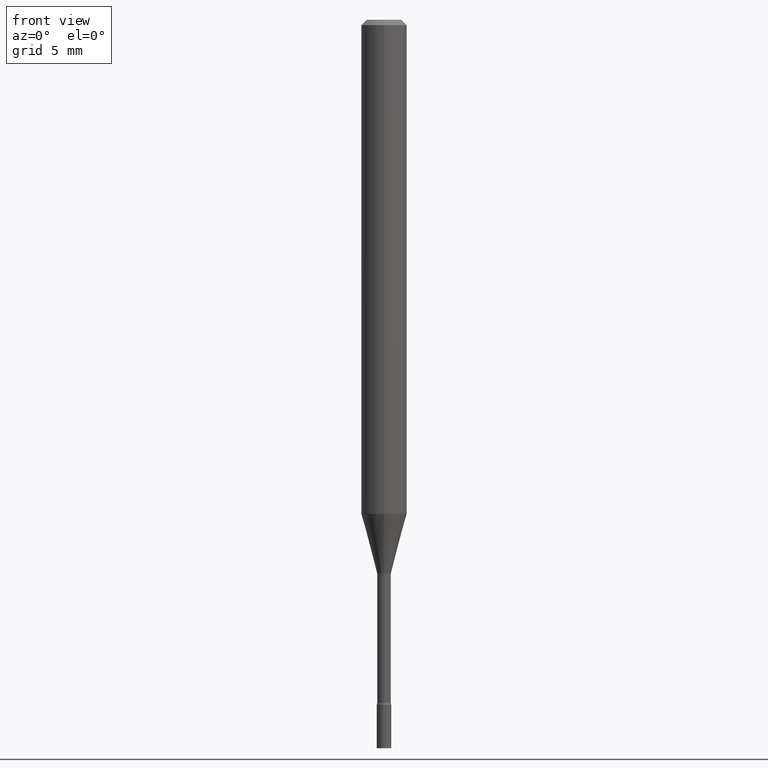
[diagram: clean part render]
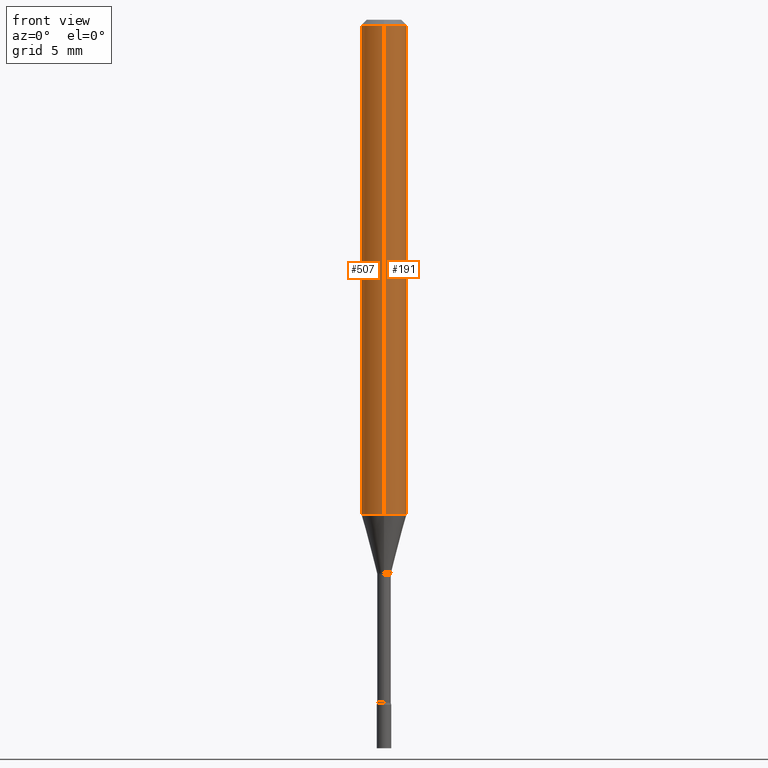
[diagram: same view with one multi-face feature highlighted, each face labeled with its STEP entity id]
A machine part, front view. The highlighted faces form ONE feature: a constant-radius fillet chain: 2 tangent blend faces with common blend radius 1.5875 mm. The faces share edges in the B-rep.
Their STEP definitions:
[1] entity #191 (Cylinder):
#4 = FACE_OUTER_BOUND ( 'NONE', #305, .T. ) ;
#14 = LINE ( 'NONE', #163, #90 ) ;
#48 = VERTEX_POINT ( 'NONE', #102 ) ;
#49 = AXIS2_PLACEMENT_3D ( 'NONE', #481, #324, #239 ) ;
#58 = VERTEX_POINT ( 'NONE', #461 ) ;
#66 = ORIENTED_EDGE ( 'NONE', *, *, #202, .F. ) ;
#75 = AXIS2_PLACEMENT_3D ( 'NONE', #82, #361, #282 ) ;
#77 = LINE ( 'NONE', #289, #162 ) ;
#82 = CARTESIAN_POINT ( 'NONE',  ( 3.318328816500207718E-29, -4.737553240931613222E-15, -1.356909379709240193 ) ) ;
#86 = CYLINDRICAL_SURFACE ( 'NONE', #393, 0.06250000000000000000 ) ;
#90 = VECTOR ( 'NONE', #150, 39.37007874015748143 ) ;
#98 = EDGE_CURVE ( 'NONE', #58, #385, #173, .T. ) ;
#102 = CARTESIAN_POINT ( 'NONE',  ( -4.364351673553912750E-16, -0.06250000000000005551, -0.01499999999999981209 ) ) ;
#123 = DIRECTION ( 'NONE',  ( -2.445505106030928727E-29, 3.491429355397911828E-15, 1.000000000000000000 ) ) ;
#150 = DIRECTION ( 'NONE',  ( -2.445505106030928727E-29, 3.491429355397911828E-15, 1.000000000000000000 ) ) ;
#156 = VERTEX_POINT ( 'NONE', #284 ) ;
#162 = VECTOR ( 'NONE', #123, 39.37007874015748143 ) ;
#163 = CARTESIAN_POINT ( 'NONE',  ( 4.440892098500625669E-16, 0.06250000000000000000, -2.182143347123694893E-16 ) ) ;
#173 = CIRCLE ( 'NONE', #75, 0.06250000000000000000 ) ;
#176 = EDGE_CURVE ( 'NONE', #58, #48, #77, .T. ) ;
#191 = ADVANCED_FACE ( 'NONE', ( #4 ), #86, .T. ) ;
#202 = EDGE_CURVE ( 'NONE', #48, #156, #273, .T. ) ;
#207 = CARTESIAN_POINT ( 'NONE',  ( 0.000000000000000000, 0.000000000000000000, 0.000000000000000000 ) ) ;
#208 = ORIENTED_EDGE ( 'NONE', *, *, #274, .T. ) ;
#239 = DIRECTION ( 'NONE',  ( -6.982962677686265922E-15, -1.000000000000000000, 3.483106191921935554E-15 ) ) ;
#265 = CARTESIAN_POINT ( 'NONE',  ( 4.440892098500955511E-16, 0.06249999999999524686, -1.356909379709240415 ) ) ;
#273 = CIRCLE ( 'NONE', #49, 0.06250000000000000000 ) ;
#274 = EDGE_CURVE ( 'NONE', #385, #156, #14, .T. ) ;
#281 = DIRECTION ( 'NONE',  ( -2.445505106030929007E-29, 3.491429355397911828E-15, 1.000000000000000000 ) ) ;
#282 = DIRECTION ( 'NONE',  ( -6.982962677686265922E-15, -1.000000000000000000, 4.370956789862821150E-15 ) ) ;
#284 = CARTESIAN_POINT ( 'NONE',  ( 4.440892098500960442E-16, 0.06249999999999995837, -0.01500000000000024751 ) ) ;
#289 = CARTESIAN_POINT ( 'NONE',  ( -4.364351673553916201E-16, -0.06250000000000000000, 2.182143347123694893E-16 ) ) ;
#305 = EDGE_LOOP ( 'NONE', ( #344, #208, #66, #472 ) ) ;
#324 = DIRECTION ( 'NONE',  ( -2.445505106030929007E-29, 3.491429355397911828E-15, 1.000000000000000000 ) ) ;
#344 = ORIENTED_EDGE ( 'NONE', *, *, #98, .T. ) ;
#361 = DIRECTION ( 'NONE',  ( -2.445505106030929007E-29, 3.491429355397911828E-15, 1.000000000000000000 ) ) ;
#385 = VERTEX_POINT ( 'NONE', #265 ) ;
#393 = AXIS2_PLACEMENT_3D ( 'NONE', #207, #281, #445 ) ;
#445 = DIRECTION ( 'NONE',  ( -6.982962677686265922E-15, -1.000000000000000000, 3.491429355397911828E-15 ) ) ;
#461 = CARTESIAN_POINT ( 'NONE',  ( -4.364351673553586359E-16, -0.06250000000000476008, -1.356909379709239971 ) ) ;
#472 = ORIENTED_EDGE ( 'NONE', *, *, #176, .F. ) ;
#481 = CARTESIAN_POINT ( 'NONE',  ( 3.668257659046400833E-31, -5.237144033096878737E-17, -0.01500000000000003067 ) ) ;
[2] entity #507 (Cylinder):
#2 = CIRCLE ( 'NONE', #517, 0.06250000000000000000 ) ;
#9 = DIRECTION ( 'NONE',  ( -2.445505106030929007E-29, 3.491429355397911828E-15, 1.000000000000000000 ) ) ;
#14 = LINE ( 'NONE', #163, #90 ) ;
#38 = EDGE_LOOP ( 'NONE', ( #100, #218, #443, #109 ) ) ;
#48 = VERTEX_POINT ( 'NONE', #102 ) ;
#58 = VERTEX_POINT ( 'NONE', #461 ) ;
#77 = LINE ( 'NONE', #289, #162 ) ;
#90 = VECTOR ( 'NONE', #150, 39.37007874015748143 ) ;
#100 = ORIENTED_EDGE ( 'NONE', *, *, #274, .F. ) ;
#102 = CARTESIAN_POINT ( 'NONE',  ( -4.364351673553912750E-16, -0.06250000000000005551, -0.01499999999999981209 ) ) ;
#109 = ORIENTED_EDGE ( 'NONE', *, *, #398, .F. ) ;
#111 = CIRCLE ( 'NONE', #194, 0.06250000000000000000 ) ;
#123 = DIRECTION ( 'NONE',  ( -2.445505106030928727E-29, 3.491429355397911828E-15, 1.000000000000000000 ) ) ;
#134 = DIRECTION ( 'NONE',  ( -6.982962677686265922E-15, -1.000000000000000000, 4.370956789862821150E-15 ) ) ;
#147 = CYLINDRICAL_SURFACE ( 'NONE', #283, 0.06250000000000000000 ) ;
#150 = DIRECTION ( 'NONE',  ( -2.445505106030928727E-29, 3.491429355397911828E-15, 1.000000000000000000 ) ) ;
#156 = VERTEX_POINT ( 'NONE', #284 ) ;
#162 = VECTOR ( 'NONE', #123, 39.37007874015748143 ) ;
#163 = CARTESIAN_POINT ( 'NONE',  ( 4.440892098500625669E-16, 0.06250000000000000000, -2.182143347123694893E-16 ) ) ;
#176 = EDGE_CURVE ( 'NONE', #58, #48, #77, .T. ) ;
#194 = AXIS2_PLACEMENT_3D ( 'NONE', #419, #216, #134 ) ;
#216 = DIRECTION ( 'NONE',  ( -2.445505106030929007E-29, 3.491429355397911828E-15, 1.000000000000000000 ) ) ;
#218 = ORIENTED_EDGE ( 'NONE', *, *, #394, .T. ) ;
#259 = DIRECTION ( 'NONE',  ( -2.445505106030929007E-29, 3.491429355397911828E-15, 1.000000000000000000 ) ) ;
#265 = CARTESIAN_POINT ( 'NONE',  ( 4.440892098500955511E-16, 0.06249999999999524686, -1.356909379709240415 ) ) ;
#274 = EDGE_CURVE ( 'NONE', #385, #156, #14, .T. ) ;
#283 = AXIS2_PLACEMENT_3D ( 'NONE', #519, #9, #309 ) ;
#284 = CARTESIAN_POINT ( 'NONE',  ( 4.440892098500960442E-16, 0.06249999999999995837, -0.01500000000000024751 ) ) ;
#289 = CARTESIAN_POINT ( 'NONE',  ( -4.364351673553916201E-16, -0.06250000000000000000, 2.182143347123694893E-16 ) ) ;
#296 = CARTESIAN_POINT ( 'NONE',  ( 3.668257659046400833E-31, -5.237144033096878737E-17, -0.01500000000000003067 ) ) ;
#309 = DIRECTION ( 'NONE',  ( -6.982962677686265922E-15, -1.000000000000000000, 3.491429355397911828E-15 ) ) ;
#385 = VERTEX_POINT ( 'NONE', #265 ) ;
#394 = EDGE_CURVE ( 'NONE', #385, #58, #111, .T. ) ;
#397 = FACE_OUTER_BOUND ( 'NONE', #38, .T. ) ;
#398 = EDGE_CURVE ( 'NONE', #156, #48, #2, .T. ) ;
#419 = CARTESIAN_POINT ( 'NONE',  ( 3.318328816500207718E-29, -4.737553240931613222E-15, -1.356909379709240193 ) ) ;
#426 = DIRECTION ( 'NONE',  ( -6.982962677686265922E-15, -1.000000000000000000, 3.483106191921935554E-15 ) ) ;
#443 = ORIENTED_EDGE ( 'NONE', *, *, #176, .T. ) ;
#461 = CARTESIAN_POINT ( 'NONE',  ( -4.364351673553586359E-16, -0.06250000000000476008, -1.356909379709239971 ) ) ;
#507 = ADVANCED_FACE ( 'NONE', ( #397 ), #147, .T. ) ;
#517 = AXIS2_PLACEMENT_3D ( 'NONE', #296, #259, #426 ) ;
#519 = CARTESIAN_POINT ( 'NONE',  ( 0.000000000000000000, 0.000000000000000000, 0.000000000000000000 ) ) ;